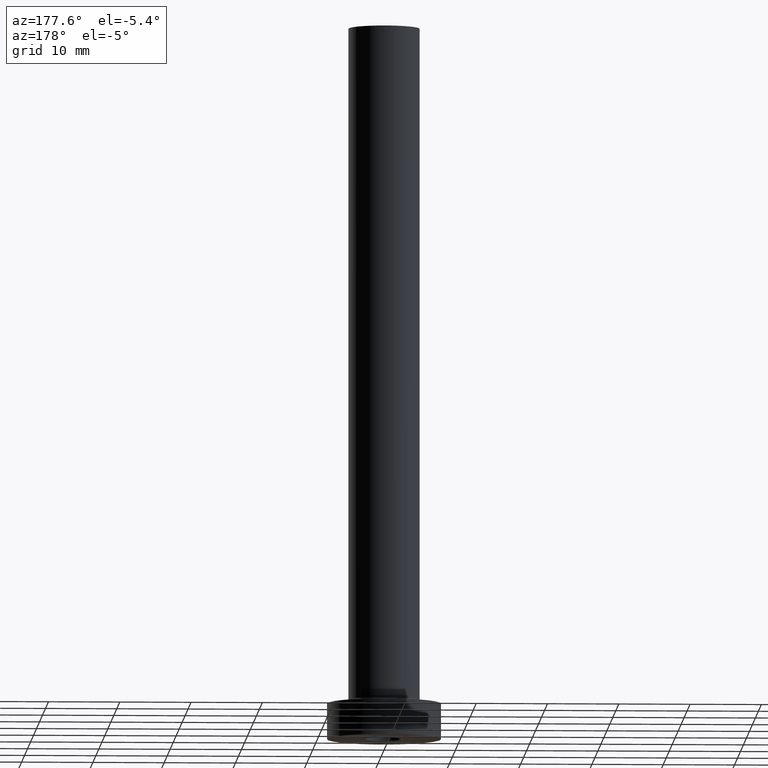
[diagram: clean part render]
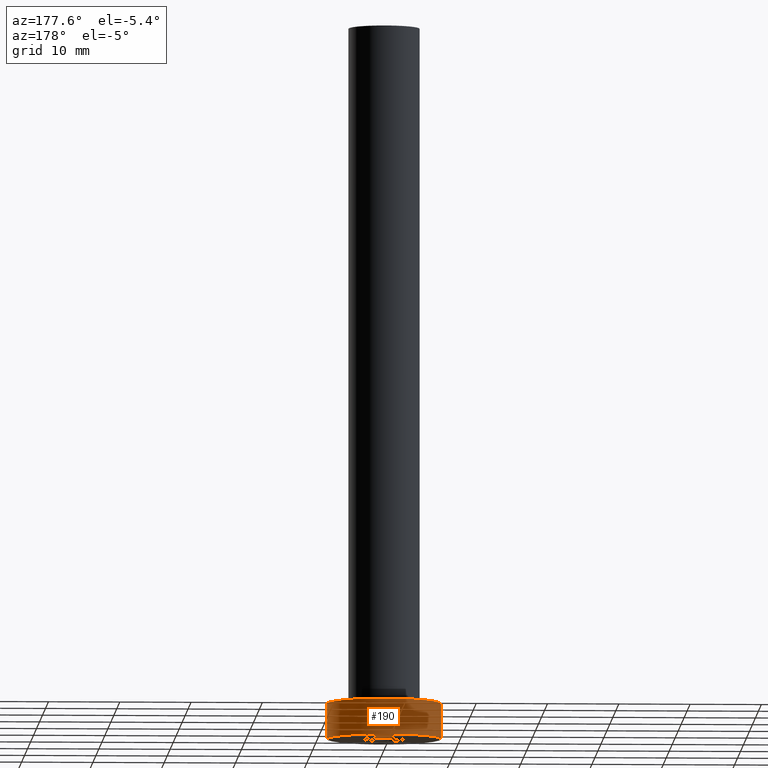
[diagram: same view with one face highlighted and labeled with its STEP entity id]
A machine part, auxiliary view. The second image highlights one B-rep face of the part: STEP entity #190.
In plain terms, the highlighted cylindrical surface (partial cylindrical patch) has radius 8 mm, axis along (-0, -0, -1).
Its self-contained STEP definition (entity closure, byte-faithful):
#2 = EDGE_CURVE ( 'NONE', #444, #179, #454, .T. ) ;
#14 = LINE ( 'NONE', #159, #218 ) ;
#39 = CARTESIAN_POINT ( 'NONE',  ( 8.000000000000000000, 9.797174393178825657E-16, 5.000000000000000000 ) ) ;
#68 = CARTESIAN_POINT ( 'NONE',  ( -8.000000000000000000, 0.000000000000000000, 5.000000000000000000 ) ) ;
#73 = EDGE_CURVE ( 'NONE', #300, #179, #277, .T. ) ;
#79 = FACE_OUTER_BOUND ( 'NONE', #133, .T. ) ;
#85 = DIRECTION ( 'NONE',  ( 0.000000000000000000, 0.000000000000000000, 1.000000000000000000 ) ) ;
#94 = EDGE_CURVE ( 'NONE', #150, #300, #14, .T. ) ;
#110 = VECTOR ( 'NONE', #136, 1000.000000000000000 ) ;
#112 = CARTESIAN_POINT ( 'NONE',  ( -8.000000000000000000, 0.000000000000000000, 0.000000000000000000 ) ) ;
#115 = DIRECTION ( 'NONE',  ( 1.000000000000000000, 0.000000000000000000, 0.000000000000000000 ) ) ;
#118 = CARTESIAN_POINT ( 'NONE',  ( 0.000000000000000000, 0.000000000000000000, 5.000000000000000000 ) ) ;
#132 = CARTESIAN_POINT ( 'NONE',  ( 8.000000000000000000, 9.797174393178825657E-16, 0.000000000000000000 ) ) ;
#133 = EDGE_LOOP ( 'NONE', ( #441, #307, #436, #198 ) ) ;
#136 = DIRECTION ( 'NONE',  ( -0.000000000000000000, -0.000000000000000000, -1.000000000000000000 ) ) ;
#149 = DIRECTION ( 'NONE',  ( 1.000000000000000000, 0.000000000000000000, 0.000000000000000000 ) ) ;
#150 = VERTEX_POINT ( 'NONE', #39 ) ;
#159 = CARTESIAN_POINT ( 'NONE',  ( 8.000000000000000000, 9.797174393178825657E-16, 5.000000000000000000 ) ) ;
#167 = EDGE_CURVE ( 'NONE', #150, #444, #284, .T. ) ;
#179 = VERTEX_POINT ( 'NONE', #112 ) ;
#186 = CARTESIAN_POINT ( 'NONE',  ( 0.000000000000000000, 0.000000000000000000, 5.000000000000000000 ) ) ;
#190 = ADVANCED_FACE ( 'NONE', ( #79 ), #367, .T. ) ;
#198 = ORIENTED_EDGE ( 'NONE', *, *, #2, .F. ) ;
#213 = DIRECTION ( 'NONE',  ( -0.000000000000000000, -0.000000000000000000, -1.000000000000000000 ) ) ;
#214 = DIRECTION ( 'NONE',  ( -1.000000000000000000, 0.000000000000000000, 0.000000000000000000 ) ) ;
#218 = VECTOR ( 'NONE', #213, 1000.000000000000000 ) ;
#277 = CIRCLE ( 'NONE', #331, 8.000000000000000000 ) ;
#284 = CIRCLE ( 'NONE', #349, 8.000000000000000000 ) ;
#290 = DIRECTION ( 'NONE',  ( -0.000000000000000000, -0.000000000000000000, -1.000000000000000000 ) ) ;
#300 = VERTEX_POINT ( 'NONE', #132 ) ;
#307 = ORIENTED_EDGE ( 'NONE', *, *, #94, .T. ) ;
#331 = AXIS2_PLACEMENT_3D ( 'NONE', #421, #427, #115 ) ;
#348 = CARTESIAN_POINT ( 'NONE',  ( -8.000000000000000000, 0.000000000000000000, 5.000000000000000000 ) ) ;
#349 = AXIS2_PLACEMENT_3D ( 'NONE', #118, #85, #149 ) ;
#367 = CYLINDRICAL_SURFACE ( 'NONE', #446, 8.000000000000000000 ) ;
#421 = CARTESIAN_POINT ( 'NONE',  ( 0.000000000000000000, 0.000000000000000000, 0.000000000000000000 ) ) ;
#427 = DIRECTION ( 'NONE',  ( 0.000000000000000000, 0.000000000000000000, 1.000000000000000000 ) ) ;
#436 = ORIENTED_EDGE ( 'NONE', *, *, #73, .T. ) ;
#441 = ORIENTED_EDGE ( 'NONE', *, *, #167, .F. ) ;
#444 = VERTEX_POINT ( 'NONE', #348 ) ;
#446 = AXIS2_PLACEMENT_3D ( 'NONE', #186, #290, #214 ) ;
#454 = LINE ( 'NONE', #68, #110 ) ;